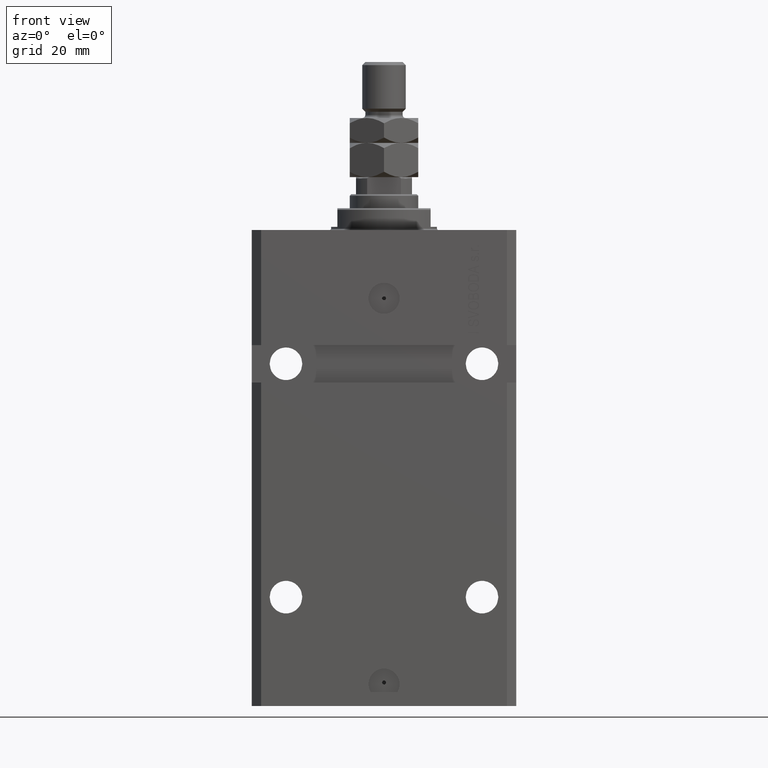
[diagram: clean part render]
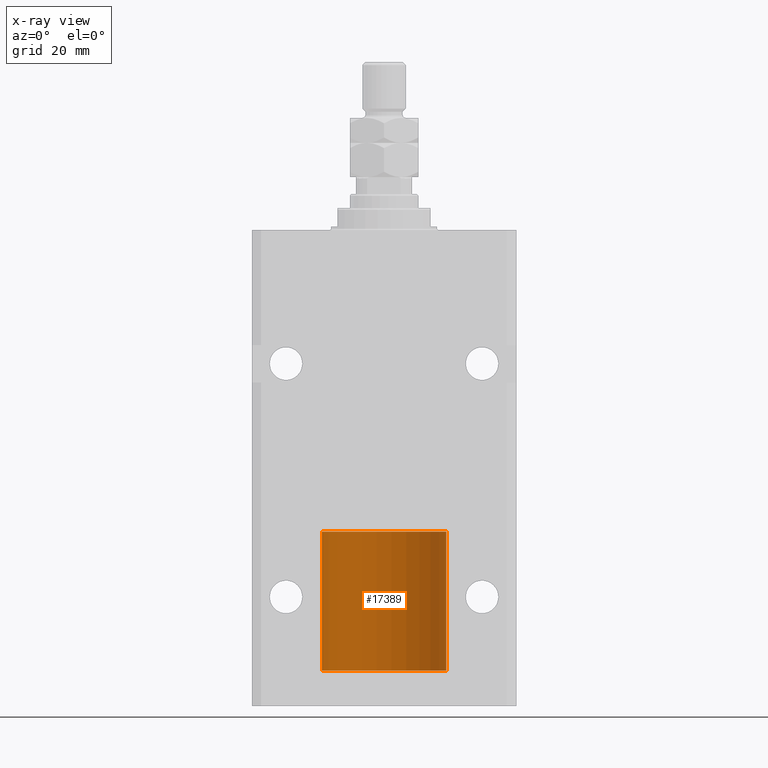
[diagram: x-ray — body ghosted, one internal face saturated and labeled with its STEP entity id]
A machine part, front view, then the same camera in x-ray: the body is ghosted and one INTERNAL B-rep face — a face not visible from any outside direction — is saturated and labeled: STEP entity #17389.
In plain terms, the highlighted cylindrical surface (partial cylindrical patch) has radius 20 mm, axis along (-0, -0, -1).
Its self-contained STEP definition (entity closure, byte-faithful):
#673 = DIRECTION ( 'NONE',  ( -0.000000000000000000, -0.000000000000000000, -1.000000000000000000 ) ) ;
#1275 = DIRECTION ( 'NONE',  ( 1.000000000000000000, 0.000000000000000000, 0.000000000000000000 ) ) ;
#1696 = VECTOR ( 'NONE', #673, 1000.000000000000000 ) ;
#2965 = ORIENTED_EDGE ( 'NONE', *, *, #39963, .T. ) ;
#4750 = CARTESIAN_POINT ( 'NONE',  ( -20.00000000000000000, 0.000000000000000000, 44.60000000000000142 ) ) ;
#5640 = FACE_OUTER_BOUND ( 'NONE', #5719, .T. ) ;
#5719 = EDGE_LOOP ( 'NONE', ( #45778, #2965, #38980, #24834 ) ) ;
#8185 = CIRCLE ( 'NONE', #33336, 20.00000000000000000 ) ;
#13261 = CARTESIAN_POINT ( 'NONE',  ( -20.00000000000000000, 0.000000000000000000, 44.60000000000000142 ) ) ;
#16271 = DIRECTION ( 'NONE',  ( 0.000000000000000000, 0.000000000000000000, 1.000000000000000000 ) ) ;
#16442 = AXIS2_PLACEMENT_3D ( 'NONE', #28765, #17305, #20369 ) ;
#17305 = DIRECTION ( 'NONE',  ( -0.000000000000000000, -0.000000000000000000, -1.000000000000000000 ) ) ;
#17389 = ADVANCED_FACE ( 'NONE', ( #5640 ), #21122, .T. ) ;
#20369 = DIRECTION ( 'NONE',  ( -1.000000000000000000, 0.000000000000000000, 0.000000000000000000 ) ) ;
#21122 = CYLINDRICAL_SURFACE ( 'NONE', #16442, 20.00000000000000000 ) ;
#21763 = AXIS2_PLACEMENT_3D ( 'NONE', #27973, #16271, #1275 ) ;
#24834 = ORIENTED_EDGE ( 'NONE', *, *, #46394, .F. ) ;
#27212 = CARTESIAN_POINT ( 'NONE',  ( 0.000000000000000000, 0.000000000000000000, 44.60000000000000142 ) ) ;
#27973 = CARTESIAN_POINT ( 'NONE',  ( 0.000000000000000000, 0.000000000000000000, 0.000000000000000000 ) ) ;
#28765 = CARTESIAN_POINT ( 'NONE',  ( 0.000000000000000000, 0.000000000000000000, 44.60000000000000142 ) ) ;
#32103 = DIRECTION ( 'NONE',  ( -0.000000000000000000, -0.000000000000000000, -1.000000000000000000 ) ) ;
#33336 = AXIS2_PLACEMENT_3D ( 'NONE', #27212, #41949, #49807 ) ;
#33899 = VECTOR ( 'NONE', #32103, 1000.000000000000000 ) ;
#34083 = VERTEX_POINT ( 'NONE', #48465 ) ;
#34177 = VERTEX_POINT ( 'NONE', #49472 ) ;
#36172 = LINE ( 'NONE', #44028, #33899 ) ;
#37242 = CARTESIAN_POINT ( 'NONE',  ( -20.00000000000000000, 0.000000000000000000, 0.000000000000000000 ) ) ;
#38980 = ORIENTED_EDGE ( 'NONE', *, *, #40898, .T. ) ;
#39558 = LINE ( 'NONE', #4750, #1696 ) ;
#39710 = VERTEX_POINT ( 'NONE', #37242 ) ;
#39963 = EDGE_CURVE ( 'NONE', #34083, #34177, #36172, .T. ) ;
#40898 = EDGE_CURVE ( 'NONE', #34177, #39710, #50131, .T. ) ;
#41949 = DIRECTION ( 'NONE',  ( 0.000000000000000000, 0.000000000000000000, 1.000000000000000000 ) ) ;
#44028 = CARTESIAN_POINT ( 'NONE',  ( 20.00000000000000000, 2.449293598294706513E-15, 44.60000000000000142 ) ) ;
#45759 = VERTEX_POINT ( 'NONE', #13261 ) ;
#45778 = ORIENTED_EDGE ( 'NONE', *, *, #49674, .F. ) ;
#46394 = EDGE_CURVE ( 'NONE', #45759, #39710, #39558, .T. ) ;
#48465 = CARTESIAN_POINT ( 'NONE',  ( 20.00000000000000000, 2.449293598294706513E-15, 44.60000000000000142 ) ) ;
#49472 = CARTESIAN_POINT ( 'NONE',  ( 20.00000000000000000, 2.449293598294706513E-15, 0.000000000000000000 ) ) ;
#49674 = EDGE_CURVE ( 'NONE', #34083, #45759, #8185, .T. ) ;
#49807 = DIRECTION ( 'NONE',  ( 1.000000000000000000, 0.000000000000000000, 0.000000000000000000 ) ) ;
#50131 = CIRCLE ( 'NONE', #21763, 20.00000000000000000 ) ;